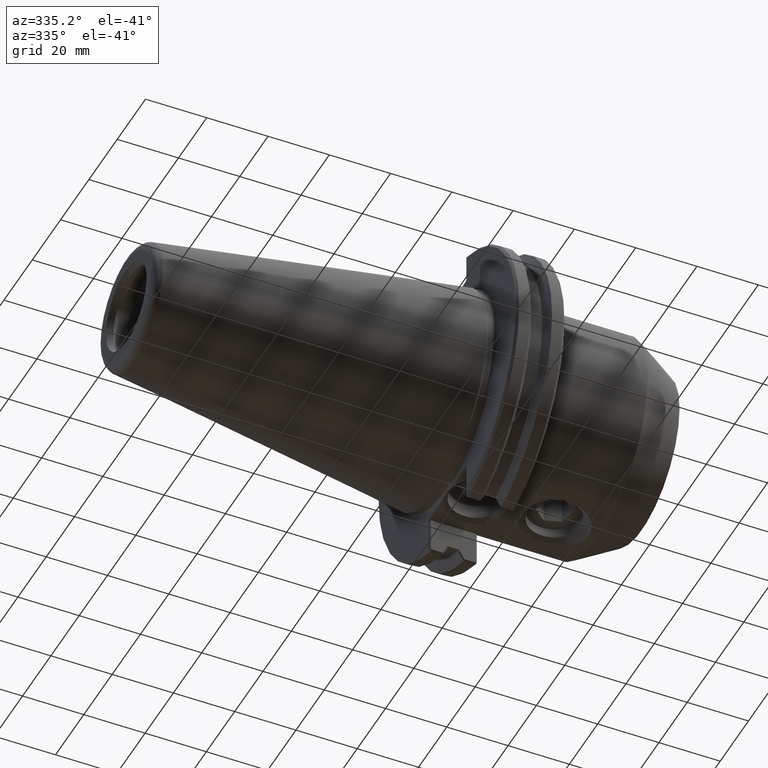
[diagram: clean part render]
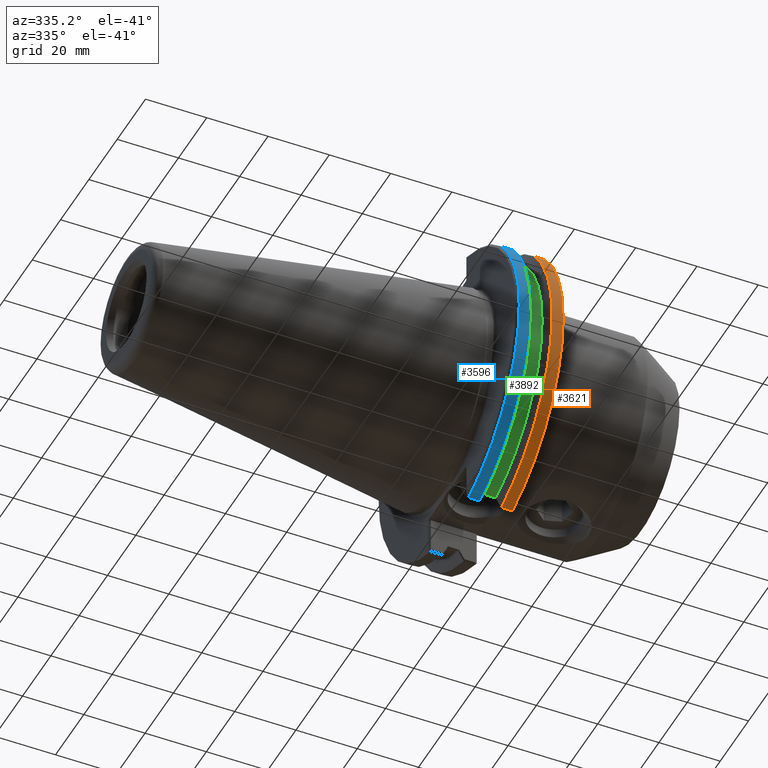
[diagram: same view with three faces highlighted in distinct colors, each labeled with its STEP entity id]
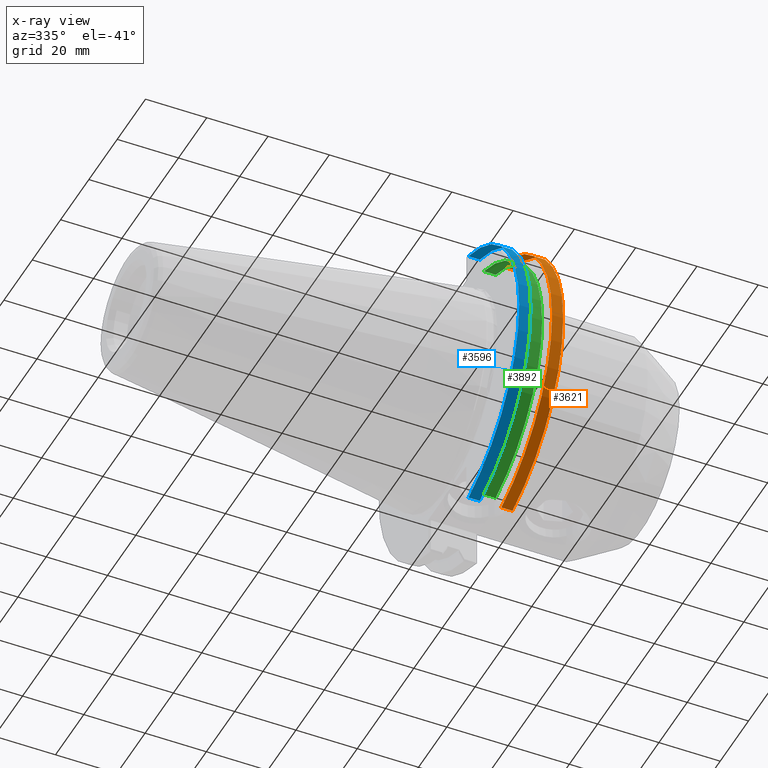
[diagram: x-ray of the same camera — body ghosted, the three highlighted faces saturated]
A machine part, auxiliary view with three faces highlighted in distinct colors.
The next image is the same camera in x-ray (body ghosted, the three faces saturated) — at least one of them is partly hidden behind the body in this view.
Their STEP definitions:

[orange] entity #3621 — the highlighted cylindrical surface (partial cylindrical patch) has radius 49.2125 mm, axis along (1, 0, 0).
#3301=CARTESIAN_POINT('',(0.72,-0.527075588370568,-1.864429557302667));
#3302=VERTEX_POINT('',#3301);
#3316=CARTESIAN_POINT('',(0.57717387222665,-0.527075588370568,-1.864429557302667));
#3317=VERTEX_POINT('',#3316);
#3318=CARTESIAN_POINT('',(0.72,-0.527075588370568,-1.864429557302667));
#3319=DIRECTION('',(-1.0,0.0,0.0));
#3320=VECTOR('',#3319,0.142826127773351);
#3321=LINE('',#3318,#3320);
#3322=EDGE_CURVE('',#3302,#3317,#3321,.T.);
#3348=CARTESIAN_POINT('',(0.72,-0.527075588370635,1.864429557302648));
#3349=VERTEX_POINT('',#3348);
#3363=CARTESIAN_POINT('',(0.72,0.0,0.0));
#3364=DIRECTION('',(1.0,1.033781E-013,0.0));
#3365=DIRECTION('',(1.033781E-013,-1.0,0.0));
#3366=AXIS2_PLACEMENT_3D('',#3363,#3364,#3365);
#3367=CIRCLE('',#3366,1.9375);
#3368=EDGE_CURVE('',#3349,#3302,#3367,.T.);
#3597=CARTESIAN_POINT('',(0.4375,0.0,0.0));
#3598=DIRECTION('',(1.0,0.0,0.0));
#3599=DIRECTION('',(-1.033781E-013,1.0,0.0));
#3600=AXIS2_PLACEMENT_3D('',#3597,#3598,#3599);
#3601=CYLINDRICAL_SURFACE('',#3600,1.9375);
#3602=ORIENTED_EDGE('',*,*,#3322,.F.);
#3603=ORIENTED_EDGE('',*,*,#3368,.F.);
#3604=CARTESIAN_POINT('',(0.57717387222665,-0.527075588370635,1.864429557302648));
#3605=VERTEX_POINT('',#3604);
#3606=CARTESIAN_POINT('',(0.57717387222665,-0.527075588370635,1.864429557302648));
#3607=DIRECTION('',(1.0,0.0,0.0));
#3608=VECTOR('',#3607,0.142826127773351);
#3609=LINE('',#3606,#3608);
#3610=EDGE_CURVE('',#3605,#3349,#3609,.T.);
#3611=ORIENTED_EDGE('',*,*,#3610,.F.);
#3612=CARTESIAN_POINT('',(0.57717387222665,0.0,0.0));
#3613=DIRECTION('',(1.0,1.033781E-013,0.0));
#3614=DIRECTION('',(-1.033781E-013,1.0,0.0));
#3615=AXIS2_PLACEMENT_3D('',#3612,#3613,#3614);
#3616=CIRCLE('',#3615,1.9375);
#3617=EDGE_CURVE('',#3605,#3317,#3616,.T.);
#3618=ORIENTED_EDGE('',*,*,#3617,.T.);
#3619=EDGE_LOOP('',(#3602,#3603,#3611,#3618));
#3620=FACE_OUTER_BOUND('',#3619,.T.);
#3621=ADVANCED_FACE('',(#3620),#3601,.T.);

[blue] entity #3596 — the highlighted cylindrical surface (partial cylindrical patch) has radius 49.2125 mm, axis along (1, 0, 0).
#2540=CARTESIAN_POINT('',(0.155,-0.527075588370635,1.864429557302648));
#2541=VERTEX_POINT('',#2540);
#2555=CARTESIAN_POINT('',(0.299526127773358,-0.527075588370635,1.864429557302648));
#2556=VERTEX_POINT('',#2555);
#2557=CARTESIAN_POINT('',(0.155,-0.527075588370635,1.864429557302648));
#2558=DIRECTION('',(1.0,0.0,0.0));
#2559=VECTOR('',#2558,0.144526127773358);
#2560=LINE('',#2557,#2559);
#2561=EDGE_CURVE('',#2541,#2556,#2560,.T.);
#3518=CARTESIAN_POINT('',(0.299526127773358,-0.527075588370557,-1.86442955730267));
#3519=VERTEX_POINT('',#3518);
#3533=CARTESIAN_POINT('',(0.155,-0.527075588370557,-1.86442955730267));
#3534=VERTEX_POINT('',#3533);
#3535=CARTESIAN_POINT('',(0.299526127773358,-0.527075588370557,-1.86442955730267));
#3536=DIRECTION('',(-1.0,0.0,0.0));
#3537=VECTOR('',#3536,0.144526127773358);
#3538=LINE('',#3535,#3537);
#3539=EDGE_CURVE('',#3519,#3534,#3538,.T.);
#3565=CARTESIAN_POINT('',(0.155,0.0,0.0));
#3566=DIRECTION('',(-1.0,-1.033781E-013,0.0));
#3567=DIRECTION('',(1.033781E-013,-1.0,0.0));
#3568=AXIS2_PLACEMENT_3D('',#3565,#3566,#3567);
#3569=CIRCLE('',#3568,1.9375);
#3570=EDGE_CURVE('',#3534,#2541,#3569,.T.);
#3579=CARTESIAN_POINT('',(0.4375,0.0,0.0));
#3580=DIRECTION('',(1.0,0.0,0.0));
#3581=DIRECTION('',(-1.033781E-013,1.0,0.0));
#3582=AXIS2_PLACEMENT_3D('',#3579,#3580,#3581);
#3583=CYLINDRICAL_SURFACE('',#3582,1.9375);
#3584=ORIENTED_EDGE('',*,*,#3539,.F.);
#3585=CARTESIAN_POINT('',(0.299526127773358,0.0,0.0));
#3586=DIRECTION('',(-1.0,-1.033781E-013,0.0));
#3587=DIRECTION('',(-1.033781E-013,1.0,0.0));
#3588=AXIS2_PLACEMENT_3D('',#3585,#3586,#3587);
#3589=CIRCLE('',#3588,1.9375);
#3590=EDGE_CURVE('',#3519,#2556,#3589,.T.);
#3591=ORIENTED_EDGE('',*,*,#3590,.T.);
#3592=ORIENTED_EDGE('',*,*,#2561,.F.);
#3593=ORIENTED_EDGE('',*,*,#3570,.F.);
#3594=EDGE_LOOP('',(#3584,#3591,#3592,#3593));
#3595=FACE_OUTER_BOUND('',#3594,.T.);
#3596=ADVANCED_FACE('',(#3595),#3583,.T.);

[green] entity #3892 — the highlighted cylindrical surface (partial cylindrical patch) has radius 45.6438 mm, axis along (-1, -0, 0).
#997=CARTESIAN_POINT('',(0.362850000000034,-0.507499999999756,-1.723848238679705));
#998=VERTEX_POINT('',#997);
#1005=CARTESIAN_POINT('',(0.362850000000034,-0.507499999999821,1.723848238679686));
#1006=VERTEX_POINT('',#1005);
#1007=CARTESIAN_POINT('',(0.362849999999981,2.442670E-013,0.0));
#1008=DIRECTION('',(-1.0,-1.033610E-013,0.0));
#1009=DIRECTION('',(-1.033610E-013,1.0,0.0));
#1010=AXIS2_PLACEMENT_3D('',#1007,#1008,#1009);
#1011=CIRCLE('',#1010,1.796999999999756);
#1012=EDGE_CURVE('',#998,#1006,#1011,.T.);
#1112=CARTESIAN_POINT('',(0.513850000000034,-0.50749999999974,-1.723848238679689));
#1113=VERTEX_POINT('',#1112);
#1120=CARTESIAN_POINT('',(0.362850000000034,-0.507499999999756,-1.723848238679697));
#1121=DIRECTION('',(1.0,1.029346E-013,0.0));
#1122=VECTOR('',#1121,0.151);
#1123=LINE('',#1120,#1122);
#1124=EDGE_CURVE('',#998,#1113,#1123,.T.);
#1276=CARTESIAN_POINT('',(0.513850000000034,-0.507499999999821,1.723848238679665));
#1277=VERTEX_POINT('',#1276);
#1284=CARTESIAN_POINT('',(0.513849999999981,2.598771E-013,0.0));
#1285=DIRECTION('',(-1.0,-1.033610E-013,0.0));
#1286=DIRECTION('',(-1.033610E-013,1.0,0.0));
#1287=AXIS2_PLACEMENT_3D('',#1284,#1285,#1286);
#1288=CIRCLE('',#1287,1.79699999999974);
#1289=EDGE_CURVE('',#1113,#1277,#1288,.T.);
#2405=CARTESIAN_POINT('',(0.513850000000034,-0.507499999999813,1.723848238679676));
#2406=DIRECTION('',(-1.0,-1.029346E-013,0.0));
#2407=VECTOR('',#2406,0.151);
#2408=LINE('',#2405,#2407);
#2409=EDGE_CURVE('',#1277,#1006,#2408,.T.);
#3881=CARTESIAN_POINT('',(0.438349999999981,2.520721E-013,0.0));
#3882=DIRECTION('',(-1.0,-1.033781E-013,0.0));
#3883=DIRECTION('',(-1.033610E-013,1.0,0.0));
#3884=AXIS2_PLACEMENT_3D('',#3881,#3882,#3883);
#3885=CYLINDRICAL_SURFACE('',#3884,1.796999999999748);
#3886=ORIENTED_EDGE('',*,*,#1124,.T.);
#3887=ORIENTED_EDGE('',*,*,#1289,.T.);
#3888=ORIENTED_EDGE('',*,*,#2409,.T.);
#3889=ORIENTED_EDGE('',*,*,#1012,.F.);
#3890=EDGE_LOOP('',(#3886,#3887,#3888,#3889));
#3891=FACE_OUTER_BOUND('',#3890,.T.);
#3892=ADVANCED_FACE('',(#3891),#3885,.T.);